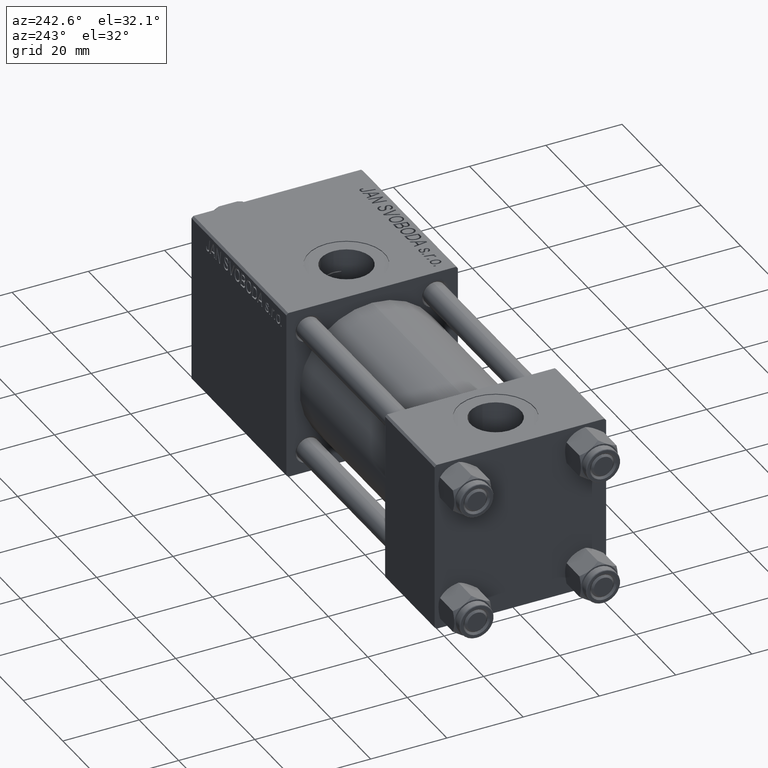
[diagram: clean part render]
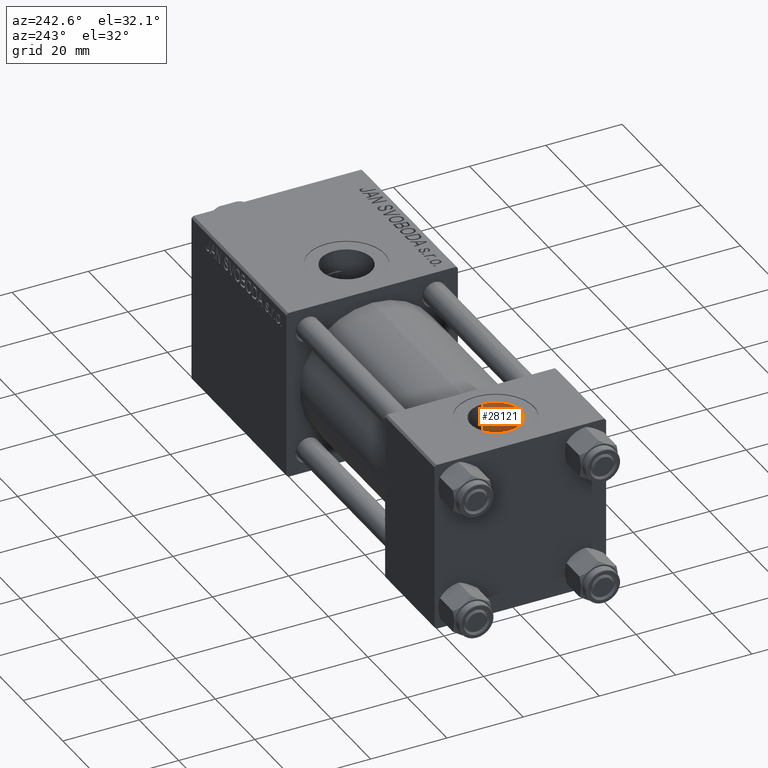
[diagram: same view with one face highlighted and labeled with its STEP entity id]
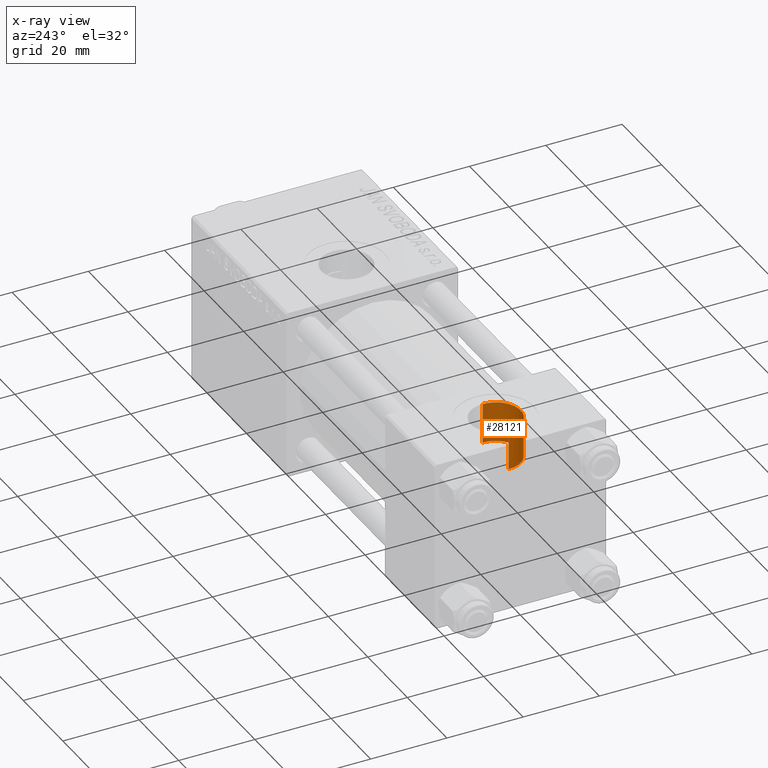
[diagram: x-ray of the same camera — body ghosted, the highlighted face saturated]
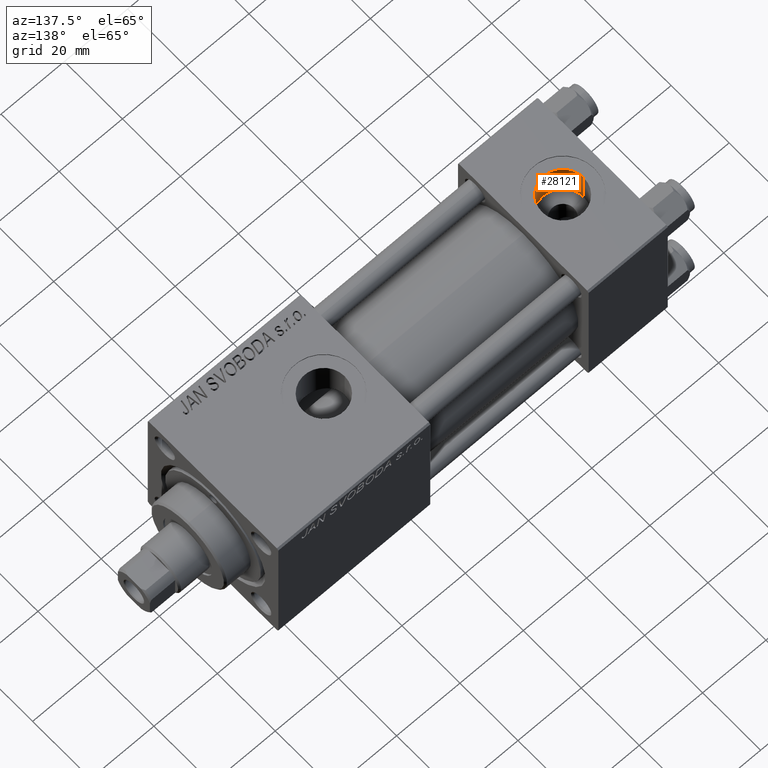
[diagram: same view with one face highlighted and labeled with its STEP entity id]
A machine part, auxiliary view. The second image highlights one B-rep face of the part: STEP entity #28121.
The next image is the same camera in x-ray: the body ghosted, the highlighted face saturated — about 0% of this face is hidden behind the body in this view.
A second angle (auxiliary view) of the same face is appended — the face is thin or edge-on in the first view.
In plain terms, the highlighted cylindrical surface (edge-blend (fillet) strip) has radius 6.58 mm, axis along (0, 0, 1).
Its self-contained STEP definition (entity closure, byte-faithful):
#3273 = LINE ( 'NONE', #18803, #28521 ) ;
#5754 = DIRECTION ( 'NONE',  ( 1.000000000000000000, 0.000000000000000000, 0.000000000000000000 ) ) ;
#7369 = ORIENTED_EDGE ( 'NONE', *, *, #14929, .F. ) ;
#8443 = EDGE_CURVE ( 'NONE', #48505, #50117, #3273, .T. ) ;
#9226 = LINE ( 'NONE', #48168, #47083 ) ;
#9569 = CARTESIAN_POINT ( 'NONE',  ( 12.50000000000000000, -1.734723475976807094E-15, 22.30000000000000071 ) ) ;
#10195 = CARTESIAN_POINT ( 'NONE',  ( 12.50000000000000000, -1.734723475976807094E-15, 11.69999999999999929 ) ) ;
#11779 = VERTEX_POINT ( 'NONE', #22422 ) ;
#14895 = AXIS2_PLACEMENT_3D ( 'NONE', #10195, #49903, #25713 ) ;
#14929 = EDGE_CURVE ( 'NONE', #44534, #11779, #9226, .T. ) ;
#17153 = DIRECTION ( 'NONE',  ( 1.000000000000000000, 0.000000000000000000, 0.000000000000000000 ) ) ;
#17561 = AXIS2_PLACEMENT_3D ( 'NONE', #43880, #20482, #17153 ) ;
#18803 = CARTESIAN_POINT ( 'NONE',  ( 5.920000000000002593, -9.289058821378490386E-16, 11.69999999999999929 ) ) ;
#20482 = DIRECTION ( 'NONE',  ( -0.000000000000000000, -0.000000000000000000, -1.000000000000000000 ) ) ;
#20812 = CARTESIAN_POINT ( 'NONE',  ( 5.920000000000002593, -9.289058821378490386E-16, 22.30000000000000071 ) ) ;
#22422 = CARTESIAN_POINT ( 'NONE',  ( 19.07999999999999829, -1.734723475976807094E-15, 22.30000000000000071 ) ) ;
#24971 = CARTESIAN_POINT ( 'NONE',  ( 19.07999999999999829, -1.734723475976807094E-15, 11.66598726114649409 ) ) ;
#25713 = DIRECTION ( 'NONE',  ( 1.000000000000000000, 0.000000000000000000, 0.000000000000000000 ) ) ;
#27904 = ORIENTED_EDGE ( 'NONE', *, *, #28715, .T. ) ;
#28121 = ADVANCED_FACE ( 'NONE', ( #33607 ), #45069, .F. ) ;
#28521 = VECTOR ( 'NONE', #30506, 1000.000000000000000 ) ;
#28541 = DIRECTION ( 'NONE',  ( -0.000000000000000000, -0.000000000000000000, 1.000000000000000000 ) ) ;
#28715 = EDGE_CURVE ( 'NONE', #50117, #11779, #42563, .T. ) ;
#30506 = DIRECTION ( 'NONE',  ( -0.000000000000000000, -0.000000000000000000, 1.000000000000000000 ) ) ;
#32815 = AXIS2_PLACEMENT_3D ( 'NONE', #9569, #40606, #5754 ) ;
#33607 = FACE_OUTER_BOUND ( 'NONE', #43181, .T. ) ;
#34767 = CARTESIAN_POINT ( 'NONE',  ( 5.920000000000002593, -9.289058821378490386E-16, 11.66598726114649409 ) ) ;
#37410 = EDGE_CURVE ( 'NONE', #44534, #48505, #42750, .T. ) ;
#39729 = ORIENTED_EDGE ( 'NONE', *, *, #37410, .T. ) ;
#40606 = DIRECTION ( 'NONE',  ( 0.000000000000000000, 0.000000000000000000, 1.000000000000000000 ) ) ;
#42563 = CIRCLE ( 'NONE', #32815, 6.579999999999999183 ) ;
#42750 = CIRCLE ( 'NONE', #17561, 6.579999999999999183 ) ;
#43181 = EDGE_LOOP ( 'NONE', ( #39729, #48677, #27904, #7369 ) ) ;
#43880 = CARTESIAN_POINT ( 'NONE',  ( 12.50000000000000000, -1.734723475976807094E-15, 11.66598726114649409 ) ) ;
#44534 = VERTEX_POINT ( 'NONE', #24971 ) ;
#45069 = CYLINDRICAL_SURFACE ( 'NONE', #14895, 6.579999999999999183 ) ;
#47083 = VECTOR ( 'NONE', #28541, 1000.000000000000000 ) ;
#48168 = CARTESIAN_POINT ( 'NONE',  ( 19.07999999999999829, -1.734723475976807094E-15, 11.69999999999999929 ) ) ;
#48505 = VERTEX_POINT ( 'NONE', #34767 ) ;
#48677 = ORIENTED_EDGE ( 'NONE', *, *, #8443, .T. ) ;
#49903 = DIRECTION ( 'NONE',  ( -0.000000000000000000, -0.000000000000000000, 1.000000000000000000 ) ) ;
#50117 = VERTEX_POINT ( 'NONE', #20812 ) ;